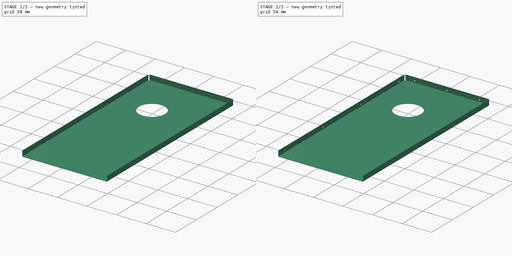
[diagram: build sequence overview — one tinted view per stage of 2, left to right]
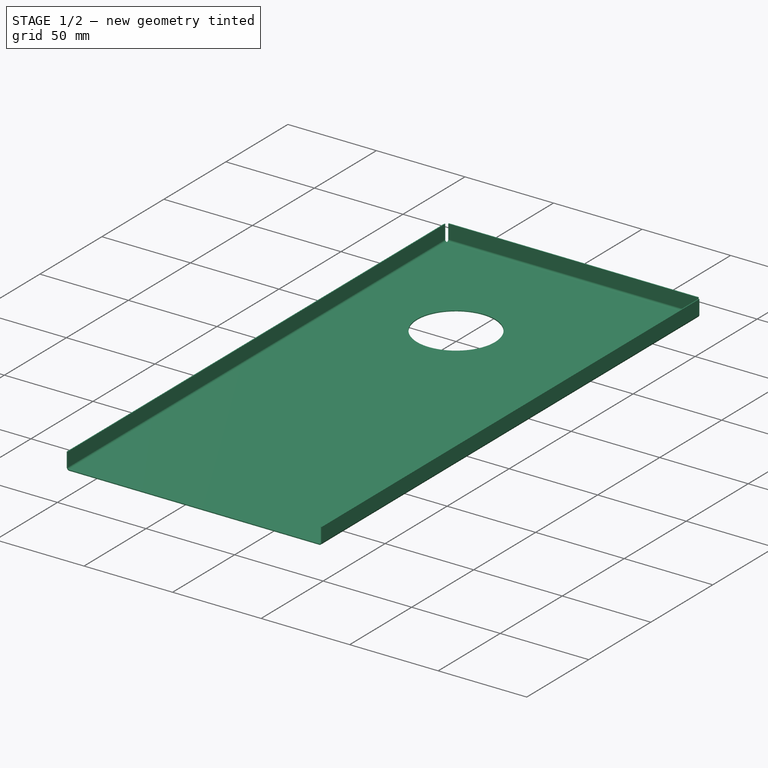
[diagram: stage 1 of 2 — iso view after this stage's code; geometry added in this stage tinted green]
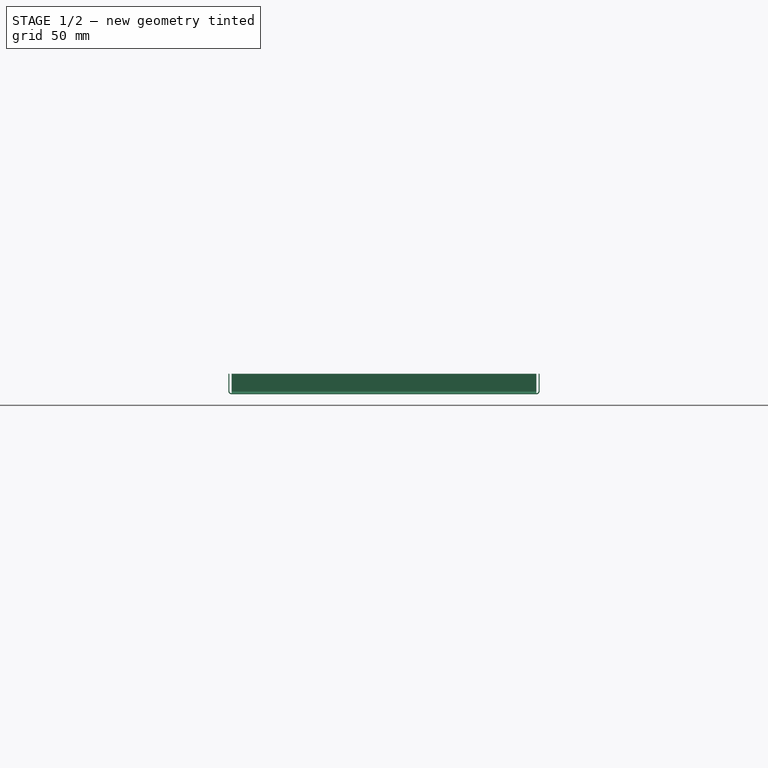
[diagram: stage 1 of 2 — front view after this stage's code; geometry added in this stage tinted green]
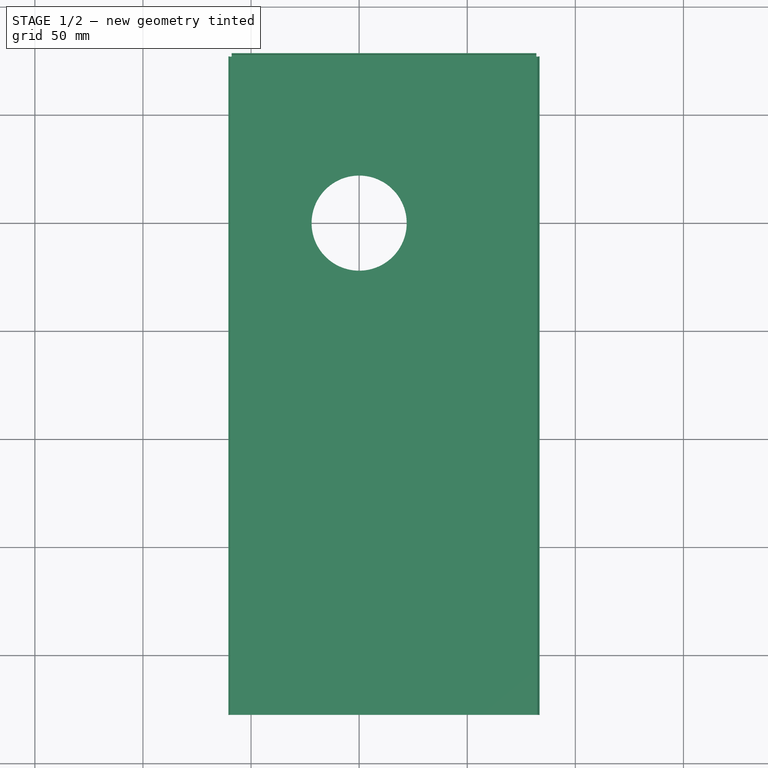
[diagram: stage 1 of 2 — top view after this stage's code; geometry added in this stage tinted green]
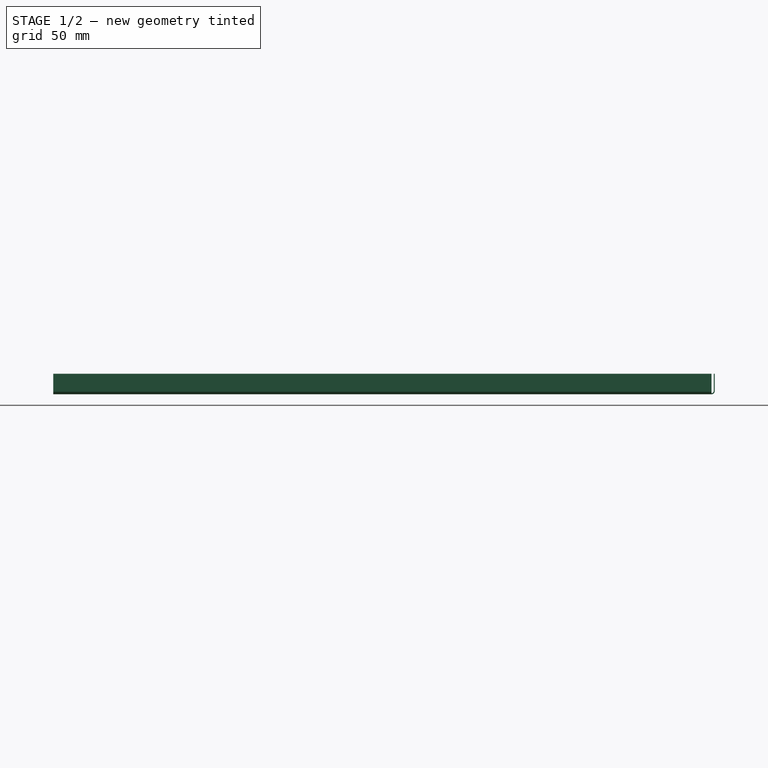
[diagram: stage 1 of 2 — right view after this stage's code; geometry added in this stage tinted green]
FCSTD DOCUMENT  (FreeCAD 0.17R12560 (Git))
Label: C1082-3_cover_side
License: CreativeCommons Attribution-ShareAlike
LicenseURL: http://creativecommons.org/licenses/by-sa/4.0/
objects: Drawing::FeatureViewPython×28, Sketcher::SketchObject×3, PartDesign::Pocket×2, Drawing::FeatureViewPart×2, PartDesign::Pad×1, Part::FeaturePython×1, Part::Feature×1, Drawing::FeaturePage×1
note: 11 computed .brp shape members not serialized (recipe doc carries the construction recipe); baked Part::Feature solids carry a one-line shape summary decoded from their .brp

FEATURE [Sketcher::SketchObject] Sketch
  MapMode = 5
  sketch-geometry (5):
    g0: Circle CenterX=0 CenterY=0 CenterZ=0 NormalX=0 NormalY=0 NormalZ=1 AngleXU=0 Radius=22
    g1: LineSegment StartX=-59 StartY=77 StartZ=0 EndX=82 EndY=77 EndZ=0
    g2: LineSegment StartX=82 StartY=77 StartZ=0 EndX=82 EndY=-227.5 EndZ=0
    g3: LineSegment StartX=82 StartY=-227.5 StartZ=0 EndX=-59 EndY=-227.5 EndZ=0
    g4: LineSegment StartX=-59 StartY=-227.5 StartZ=0 EndX=-59 EndY=77 EndZ=0
  constraints (14):
    c: Coincident(g0,g-1)
    c: Coincident(g1,g2)
    c: Coincident(g2,g3)
    c: Coincident(g3,g4)
    c: Coincident(g4,g1)
    c: Horizontal(g1)
    c: Horizontal(g3)
    c: Vertical(g2)
    c: Vertical(g4)
    c: Radius(g0) = 22
    c: DistanceY(g2,g2) = 304.5  'side_W'
    c: DistanceY(g-1,g1) = 77  'circle_y'
    c: DistanceX(g1,g1) = 141  'side_L'
    c: DistanceX(g1,g-1) = 59  'circle_x'
FEATURE [PartDesign::Pad] Pad
  Length = 0.5
  Length2 = 100
  Profile = -> Sketch
  Type = 0
FEATURE [Part::FeaturePython] Bend  # WARN: FeaturePython — macro-defined, semantics opaque (R4)
  angle = 90
  baseObject = -> Pad [Face4,Face1,Face2]
  gap1 = 0
  gap2 = 0
  invert = false
  length = 8
  radius = 1
  reliefd = 1
  reliefw = 0.5
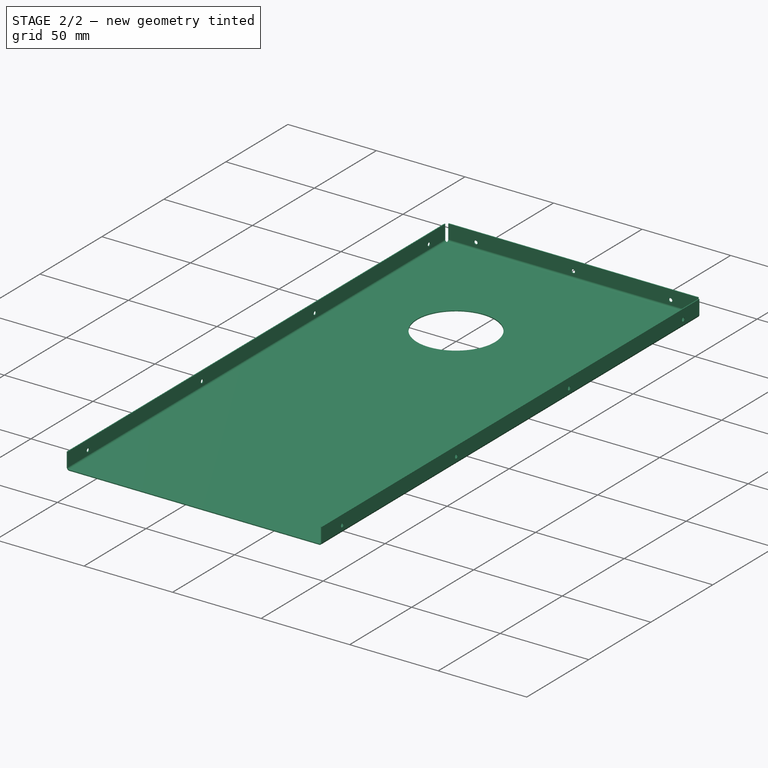
[diagram: stage 2 of 2 — iso view after this stage's code; geometry added in this stage tinted green]
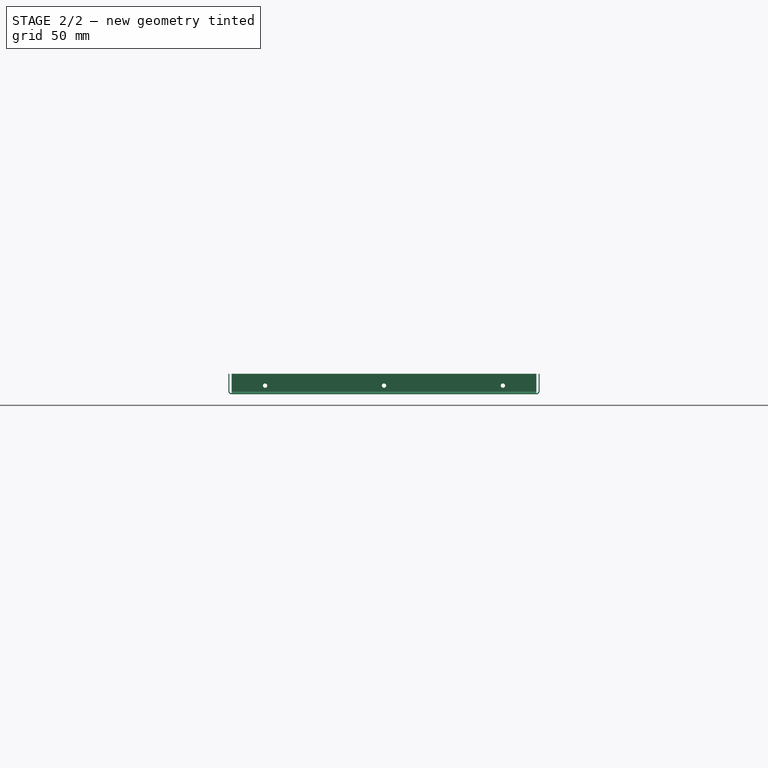
[diagram: stage 2 of 2 — front view after this stage's code; geometry added in this stage tinted green]
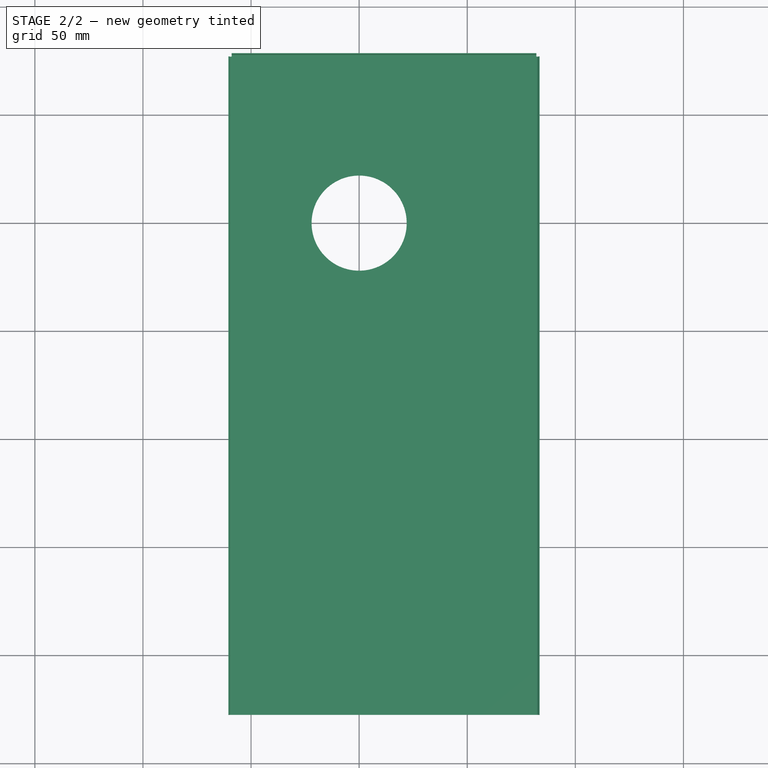
[diagram: stage 2 of 2 — top view after this stage's code; geometry added in this stage tinted green]
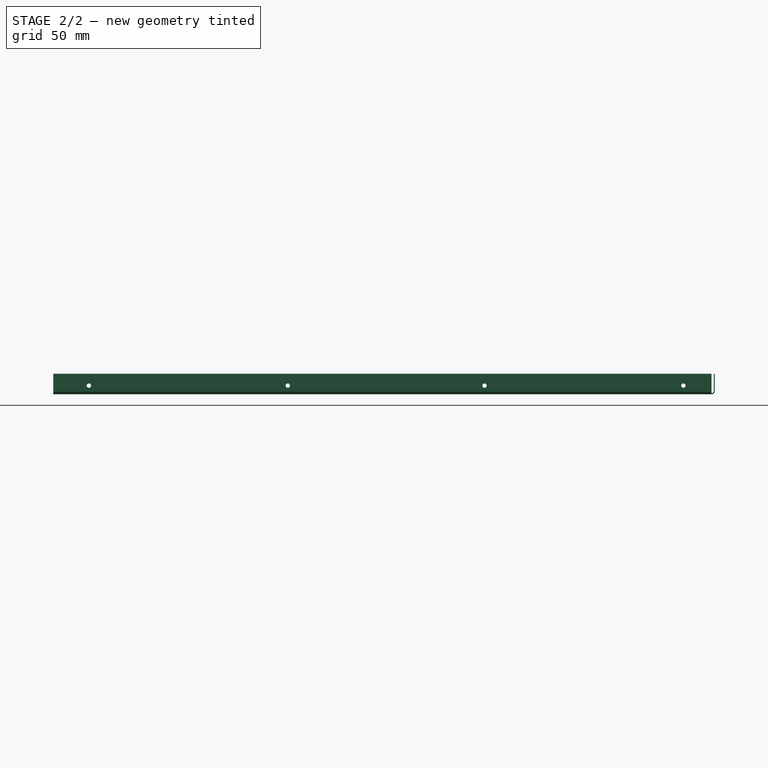
[diagram: stage 2 of 2 — right view after this stage's code; geometry added in this stage tinted green]
FEATURE [Sketcher::SketchObject] Sketch001
  MapMode = 5
  Placement = pos=(0,78.5,0) rot=(0,0.707107,0.707107;3.14159rad)
  Support = -> [Bend]
  expr: Constraints[6] = Sketch001.Constraints.bend_L + 0.5 + 1 - 5.5
  expr: Constraints[14] = Sketch.Constraints.side_L / 2 - Sketch.Constraints.circle_x
  expr: Constraints[5] = Sketch.Constraints.side_L + 1 - 32
  expr: Constraints.bend_L = Bend.length
  sketch-geometry (5):
    g0: Circle CenterX=43.5 CenterY=4 CenterZ=0 NormalX=0 NormalY=0 NormalZ=1 AngleXU=0 Radius=1
    g1: Circle CenterX=-66.5 CenterY=4 CenterZ=0 NormalX=0 NormalY=0 NormalZ=1 AngleXU=0 Radius=1
    g2: LineSegment [constr] StartX=-66.5 StartY=4 StartZ=0 EndX=43.5 EndY=4 EndZ=0
    g3: Circle CenterX=-11.5 CenterY=4 CenterZ=0 NormalX=0 NormalY=0 NormalZ=1 AngleXU=0 Radius=1
    g4: LineSegment [constr] StartX=-11.5 StartY=0 StartZ=0 EndX=-11.5 EndY=8 EndZ=0
  constraints (15):
    c: Coincident(g2,g1)
    c: Coincident(g2,g0)
    c: Horizontal(g2)
    c: Equal(g0,g1)
    c: Radius(g0) = 1
    c: DistanceX(g2,g2) = 110
    c: DistanceY(g-1,g0) = 4
    c: PointOnObject(g3,g2)
    c: Equal(g3,g0)
    c: PointOnObject(g4,g-1)
    c: Vertical(g4)
    c: DistanceY(g4,g4) = 8  'bend_L'
    c: PointOnObject(g3,g4)
    c: Symmetric(g0,g1,g4)
    c: DistanceX(g3,g-1) = 11.5
FEATURE [PartDesign::Pocket] Pocket  label="Pocket-rivets-top"
  Length = 5
  Profile = -> Sketch001
  Type = 1
FEATURE [Sketcher::SketchObject] Sketch002
  MapMode = 5
  Placement = pos=(-60.5,0,0) rot=(0.57735,-0.57735,-0.57735;2.0944rad)
  Support = -> [Pocket]
  expr: Constraints[17] = Sketch002.Constraints.bend_L + 0.5 + 1 - 5.5
  expr: Constraints[13] = round(Sketch002.Constraints.holes_l / 3)
  expr: Constraints.holes_l = Sketch.Constraints.side_W - 30 + 0.5
  expr: Constraints[18] = Sketch.Constraints.circle_y + 1 + 0.5 + 0.5
  expr: Constraints.bend_L = Bend.length
  sketch-geometry (7):
    g0: Circle CenterX=-64 CenterY=4 CenterZ=0 NormalX=0 NormalY=0 NormalZ=1 AngleXU=0 Radius=1
    g1: Circle CenterX=28 CenterY=4 CenterZ=0 NormalX=0 NormalY=0 NormalZ=1 AngleXU=0 Radius=1
    g2: Circle CenterX=119 CenterY=4 CenterZ=0 NormalX=0 NormalY=0 NormalZ=1 AngleXU=0 Radius=1
    g3: Circle CenterX=211 CenterY=4 CenterZ=0 NormalX=0 NormalY=0 NormalZ=1 AngleXU=0 Radius=1
    g4: LineSegment [constr] StartX=-64 StartY=4 StartZ=0 EndX=28 EndY=4 EndZ=0
    g5: LineSegment [constr] StartX=119 StartY=4 StartZ=0 EndX=211 EndY=4 EndZ=0
    g6: LineSegment [constr] StartX=-79 StartY=0 StartZ=0 EndX=-79 EndY=8 EndZ=0
  constraints (20):
    c: Coincident(g4,g0)
    c: Coincident(g4,g1)
    c: Horizontal(g4)
    c: Coincident(g5,g2)
    c: Coincident(g5,g3)
    c: Horizontal(g5)
    c: PointOnObject(g2,g4)
    c: Equal(g4,g5)
    c: DistanceX(g0,g3) = 275  'holes_l'
    c: Equal(g0,g1)
    c: Equal(g1,g2)
    c: Equal(g2,g3)
    c: Radius(g0) = 1
    c: DistanceX(g5,g5) = 92
    c: PointOnObject(g6,g-1)
    c: Vertical(g6)
    c: DistanceY(g6,g6) = 8  'bend_L'
    c: DistanceY(g-1,g3) = 4
    c: DistanceX(g6,g-1) = 79
    c: DistanceX(g6,g0) = 15
FEATURE [PartDesign::Pocket] Pocket001  label="Pocket-rivets-side"
  Length = 5
  Profile = -> Sketch002
  Type = 1
FEATURE [Part::Feature] Unfold
  shape: bbox 160.8 x 314.4 x 0.5 mm, 42 faces (baked)
FEATURE [Drawing::FeatureViewPart] Ortho  label="Ortho_0_0"
  Direction = (0,0,1)
  HiddenWidth = 0.15
  LineWidth = 0.35
  Rotation = -90
  Scale = 0.5
  ShowHiddenLines = false
  ShowSmoothLines = false
  Source = -> Unfold
  Tolerance = 0.05
  ViewResult = <g id="Ortho_0_0"\n   transform="rotate(-90,80,140) translate(80,140) scale(0.5,0.5)"\n  >\n<g   stroke="rgb(0, 0, 0)"\n   stroke-width="0.7"\n   stroke-linecap="butt"\n   stroke-linejoin="miter"\n   fill="none"\n   transform="scale(1,-1)"\n  >\n<path id= "1" d=" M -59 78.8852 L -59 86.8852 " />\n<path id= "2" d=" M -59 78.8852 L 82 78.8852 " />\n<path id= "3" d=" M -59 86.8852 L 82 86.8852 " />\n<path id= "4" d=" M 82 78.8852 L 82 86.8852 " />\n<circle cx ="-43.5" cy ="81.3852" r ="1" /><circle cx ="11.5" cy ="81.3852" r ="1" /><circle cx ="66.5" cy ="81.3852" r ="1" /><path id= "8" d=" M -59 77 L 82 77 " />\n<path id= "9" d=" M -59 77 L -59 78.8852 " />\n<path id= "10" d=" M 82 77 L 82 78.8852 " />\n<path id= "11" d=" M 82 77 L 83.8852 77 " />\n<path id= "12" d=" M 83.8852 77 L 91.8852 77 " />\n<path id= "13" d=" M 83.8852 77 L 83.8852 -227.5 " />\n<path id= "14" d=" M 91.8852 77 L 91.8852 -227.5 " />\n<path id= "15" d=" M 83.8852 -227.5 L 91.8852 -227.5 " />\n<circle cx ="86.3852" cy ="64" r ="1" /><circle cx ="86.3852" cy ="-28" r ="1" /><circle cx ="86.3852" cy ="-211" r ="1" /><circle cx ="86.3852" cy ="-119" r ="1" /><path id= "20" d=" M 82 77 L 82 -227.5 " />\n<path id= "21" d=" M 82 -227.5 L 83.8852 -227.5 " />\n<path id= "22" d=" M -59 77 L -60.8852 77 " />\n<path id= "23" d=" M -60.8852 -227.5 L -68.8852 -227.5 " />\n<path id= "24" d=" M -60.8852 -227.5 L -60.8852 77 " />\n<path id= "25" d=" M -68.8852 -227.5 L -68.8852 77 " />\n<path id= "26" d=" M -60.8852 77 L -68.8852 77 " />\n<circle cx ="-63.3852" cy ="64" r ="1" /><circle cx ="-63.3852" cy ="-28" r ="1" /><circle cx ="-63.3852" cy ="-211" r ="1" /><circle cx ="-63.3852" cy ="-119" r ="1" /><path id= "31" d=" M -59 -227.5 L -59 77 " />\n<path id= "32" d=" M -59 -227.5 L -60.8852 -227.5 " />\n<path id= "33" d=" M 82 -227.5 L -59 -227.5 " />\n<circle cx ="0" cy ="0" r ="22" /></g>\n</g>
  Visible = false
  X = 80
  Y = 140
FEATURE [Drawing::FeatureViewPart] Ortho002  label="Ortho_1_1"
  Direction = (0.57735,-0.57735,0.57735)
  HiddenWidth = 0.15
  LineWidth = 0.35
  Rotation = -60
  Scale = 0.5
  ShowHiddenLines = false
  ShowSmoothLines = false
  Source = -> Pocket001
  Tolerance = 0.05
  ViewResult = <blob: 6591 chars omitted>
  Visible = false
  X = 210
  Y = 55
FEATURE [Drawing::FeatureViewPython] table002  # drawing view (typed FeaturePython)
  Rotation = 0
  ViewResult = <blob: 3127 chars omitted>
  Visible = false
  X = 0
  Y = 0
  border_color = rgb(0,0,0)
  border_width = 0.3
  click1_x = 20
  click1_y = 20
  column_widths = [10,25,25,25]
  contents = Tag | Direction | Angle | Inner Radius | A | UP | 90 | 1mm | B | UP | 90 | 1mm | C | UP | 90 | 1mm
  extra_rows = 0
  padding_x = 1
  padding_y = 1
  row_heights = [5]
  textRenderer_table_color = rgb(0,0,0)
  textRenderer_table_family = inherit
  textRenderer_table_size = 4
FEATURE [Drawing::FeatureViewPython] text001  # drawing view (typed FeaturePython)
  Rotation = 0
  ViewResult = <g> <text x="20.000000" y="15.000000" font-family="inherit" font-size="5" fill="rgb(0,0,0)" text-anchor="inherit" transform="rotate(0.000000 20.000000,15.000000)" >Scale 0.5</text> </g>
  Visible = false
  X = 0
  Y = 0
  click1_x = 20
  click1_y = 15
  rotation = 0
  text = Scale 0.5
  textRenderer_addText_color = rgb(0,0,0)
  textRenderer_addText_family = inherit
  textRenderer_addText_size = 5
FEATURE [Drawing::FeatureViewPython] text002  # drawing view (typed FeaturePython)
  Rotation = 0
  ViewResult = <g> <text x="20.000000" y="10.000000" font-family="inherit" font-size="5" fill="rgb(0,0,0)" text-anchor="inherit" transform="rotate(0.000000 20.000000,10.000000)" >SatNOGS Rotator v3.1, cover_side_mirror</text> </g>
  Visible = false
  X = 0
  Y = 0
  click1_x = 20
  click1_y = 10
  rotation = 0
  text = SatNOGS Rotator v3.1, cover_side_mirror
  textRenderer_addText_color = rgb(0,0,0)
  textRenderer_addText_family = inherit
  textRenderer_addText_size = 5
FEATURE [Drawing::FeatureViewPython] centerLines001  # drawing view (typed FeaturePython)
  Rotation = 0
  ViewResult = <g transform="scale(0.500000,0.500000)" stroke="rgb(0,0,255)"  stroke-width="0.640000" > <path d="M 83.000000,268.500000 L 77.000000,268.500000 M 73.000000,268.500000 L 61.000000,268.500000 M 57.000000,268.500000 L 51.000000,268.500000 M 47.000000,268.500000 L 40.000000,268.500000 "/>\n<path d="M 83.000000,268.500000 L 89.000000,268.500000 M 93.000000,268.500000 L 105.000000,268.500000 M 109.000000,268.500000 L 115.000000,268.500000 M 119.000000,268.500000 L 131.000000,268.500000 M 135.000000,268.500000 L 141.000000,268.500000 M 145.000000,268.500000 L 157.000000,268.500000 M 161.000000,268.500000 L 167.000000,268.500000 M 171.000000,268.500000 L 183.000000,268.500000 M 187.000000,268.500000 L 193.000000,268.500000 M 197.000000,268.500000 L 209.000000,268.500000 M 213.000000,268.500000 L 219.000000,268.500000 M 223.000000,268.500000 L 235.000000,268.500000 M 239.000000,268.500000 L 245.000000,268.500000 M 249.000000,268.500000 L 261.000000,268.500000 M 265.000000,268.500000 L 271.000000,268.500000 M 275.000000,268.500000 L 287.000000,268.500000 M 291.000000,268.500000 L 297.000000,268.500000 M 301.000000,268.500000 L 313.000000,268.500000 M 317.000000,268.500000 L 323.000000,268.500000 M 327.000000,268.500000 L 339.000000,268.500000 M 343.000000,268.500000 L 349.000000,268.500000 M 353.000000,268.500000 L 365.000000,268.500000 M 369.000000,268.500000 L 375.000000,268.500000 M 379.000000,268.500000 L 391.000000,268.500000 M 395.000000,268.500000 L 401.000000,268.500000 M 405.000000,268.500000 L 417.000000,268.500000 "/> </g> 
  Visible = false
  X = 0
  Y = 0
  centerLine_color = rgb(0,0,255)
  centerLine_len_dash = 6
  centerLine_len_dot = 3
  centerLine_len_gap = 2
  centerLine_width = 0.32
  click1_x = 20
  click1_y = 130
  click2_x = 210
  click2_y = 130
FEATURE [Drawing::FeatureViewPython] dim001  # drawing view (typed FeaturePython)
  Rotation = 0
  ViewResult = <g> \n  <line x1="195.750000" y1="94.057400" x2="221.000000" y2="94.057400" style="stroke:rgb(0,0,255);stroke-width:0.20" />\n<line x1="195.750000" y1="174.442600" x2="221.000000" y2="174.442600" style="stroke:rgb(0,0,255);stroke-width:0.20" />\n<line x1="220.000000" y1="94.057400" x2="220.000000" y2="174.442600" style="stroke:rgb(0,0,255);stroke-width:0.20" /> \n  <polygon points="220.000000,174.442600 221.000000,171.442600 220.000000,170.442600 219.000000,171.442600" style="fill:rgb(0,0,255);stroke:rgb(0,0,255);stroke-width:0" /><polygon points="220.000000,94.057400 219.000000,97.057400 220.000000,98.057400 221.000000,97.057400" style="fill:rgb(0,0,255);stroke:rgb(0,0,255);stroke-width:0" /> \n  <text x="218.000000" y="134.250000" font-family="inherit" font-size="3.6" fill="rgb(0,0,255)" text-anchor="middle" transform="rotate(-90.000000 218.000000,134.250000)" >160.8</text> </g>
  Visible = false
  X = 0
  Y = 0
  arrowL1 = 3
  arrowL2 = 1
  arrowW = 2
  arrow_scheme = 0
  autoPlaceOffset = 2
  autoPlaceText = true
  click1_x = 220
  click1_y = 140
  click2_x = 220
  click2_y = 140
  comma_decimal_place = false
  dimension_line_overshoot = 1
  gap_datum_points = 2
  halfDimension_linear = false
  lineColor = rgb(0,0,255)
  strokeWidth = 0.2
  textFormat_linear = %(value)3.1f
  textRenderer_color = rgb(0,0,255)
  textRenderer_family = inherit
  textRenderer_size = 3.6
  unit_custom_scale = 1
  unit_scheme = 0
FEATURE [Drawing::FeatureViewPython] dim002  # drawing view (typed FeaturePython)
  Rotation = 0
  ViewResult = <g> \n  <line x1="193.750000" y1="92.057400" x2="193.750000" y2="79.000000" style="stroke:rgb(0,0,255);stroke-width:0.20" />\n<line x1="41.500000" y1="92.057400" x2="41.500000" y2="79.000000" style="stroke:rgb(0,0,255);stroke-width:0.20" />\n<line x1="193.750000" y1="80.000000" x2="41.500000" y2="80.000000" style="stroke:rgb(0,0,255);stroke-width:0.20" /> \n  <polygon points="41.500000,80.000000 44.500000,81.000000 45.500000,80.000000 44.500000,79.000000" style="fill:rgb(0,0,255);stroke:rgb(0,0,255);stroke-width:0" /><polygon points="193.750000,80.000000 190.750000,79.000000 189.750000,80.000000 190.750000,81.000000" style="fill:rgb(0,0,255);stroke:rgb(0,0,255);stroke-width:0" /> \n  <text x="117.625000" y="78.000000" font-family="inherit" font-size="3.6" fill="rgb(0,0,255)" text-anchor="middle" transform="rotate(-0.000000 117.625000,78.000000)" >304.5</text> </g>
  Visible = false
  X = 0
  Y = 0
  arrowL1 = 3
  arrowL2 = 1
  arrowW = 2
  arrow_scheme = 0
  autoPlaceOffset = 2
  autoPlaceText = true
  click1_x = 40
  click1_y = 80
  click2_x = 40
  click2_y = 80
  comma_decimal_place = false
  dimension_line_overshoot = 1
  gap_datum_points = 2
  halfDimension_linear = false
  lineColor = rgb(0,0,255)
  strokeWidth = 0.2
  textFormat_linear = %(value)3.1f
  textRenderer_color = rgb(0,0,255)
  textRenderer_family = inherit
  textRenderer_size = 3.6
  unit_custom_scale = 1
  unit_scheme = 0
FEATURE [Drawing::FeatureViewPython] dim003  # drawing view (typed FeaturePython)
  Rotation = 0
  ViewResult = <g> \n  <line x1="41.500000" y1="92.057400" x2="41.500000" y2="84.000000" style="stroke:rgb(0,0,255);stroke-width:0.20" />\n<line x1="80.000000" y1="138.000000" x2="80.000000" y2="84.000000" style="stroke:rgb(0,0,255);stroke-width:0.20" />\n<line x1="41.500000" y1="85.000000" x2="80.000000" y2="85.000000" style="stroke:rgb(0,0,255);stroke-width:0.20" /> \n  <polygon points="80.000000,85.000000 77.000000,84.000000 76.000000,85.000000 77.000000,86.000000" style="fill:rgb(0,0,255);stroke:rgb(0,0,255);stroke-width:0" /><polygon points="41.500000,85.000000 44.500000,86.000000 45.500000,85.000000 44.500000,84.000000" style="fill:rgb(0,0,255);stroke:rgb(0,0,255);stroke-width:0" /> \n  <text x="60.750000" y="83.000000" font-family="inherit" font-size="3.6" fill="rgb(0,0,255)" text-anchor="middle" transform="rotate(0.000000 60.750000,83.000000)" >77</text> </g>
  Visible = false
  X = 0
  Y = 0
  arrowL1 = 3
  arrowL2 = 1
  arrowW = 2
  arrow_scheme = 0
  autoPlaceOffset = 2
  autoPlaceText = true
  click1_x = 65
  click1_y = 85
  click2_x = 65
  click2_y = 85
  comma_decimal_place = false
  dimension_line_overshoot = 1
  gap_datum_points = 2
  halfDimension_linear = false
  lineColor = rgb(0,0,255)
  strokeWidth = 0.2
  textFormat_linear = %(value)3.1f
  textRenderer_color = rgb(0,0,255)
  textRenderer_family = inherit
  textRenderer_size = 3.6
  unit_custom_scale = 1
  unit_scheme = 0
FEATURE [Drawing::FeatureViewPython] dim004  # drawing view (typed FeaturePython)
  Rotation = 0
  ViewResult = <g> \n  <line x1="41.500000" y1="92.057400" x2="41.500000" y2="90.000000" style="stroke:rgb(0,0,255);stroke-width:0.20" />\n<line x1="48.000000" y1="94.807400" x2="48.000000" y2="90.000000" style="stroke:rgb(0,0,255);stroke-width:0.20" />\n<line x1="41.500000" y1="91.000000" x2="48.000000" y2="91.000000" style="stroke:rgb(0,0,255);stroke-width:0.20" /> \n  <polygon points="48.000000,91.000000 51.000000,92.000000 52.000000,91.000000 51.000000,90.000000" style="fill:rgb(0,0,255);stroke:rgb(0,0,255);stroke-width:0" /><polygon points="41.500000,91.000000 38.500000,90.000000 37.500000,91.000000 38.500000,92.000000" style="fill:rgb(0,0,255);stroke:rgb(0,0,255);stroke-width:0" /> \n  <text x="44.750000" y="89.000000" font-family="inherit" font-size="3.6" fill="rgb(0,0,255)" text-anchor="middle" transform="rotate(0.000000 44.750000,89.000000)" >13</text> </g>
  Visible = false
  X = 0
  Y = 0
  arrowL1 = 3
  arrowL2 = 1
  arrowW = 2
  arrow_scheme = 0
  autoPlaceOffset = 2
  autoPlaceText = true
  click1_x = 44
  click1_y = 91
  click2_x = 44
  click2_y = 91
  comma_decimal_place = false
  dimension_line_overshoot = 1
  gap_datum_points = 2
  halfDimension_linear = false
  lineColor = rgb(0,0,255)
  strokeWidth = 0.2
  textFormat_linear = %(value)3.1f
  textRenderer_color = rgb(0,0,255)
  textRenderer_family = inherit
  textRenderer_size = 3.6
  unit_custom_scale = 1
  unit_scheme = 0
FEATURE [Drawing::FeatureViewPython] dim005  # drawing view (typed FeaturePython)
  Rotation = 0
  ViewResult = <g> \n  <line x1="34.557400" y1="169.500000" x2="6.000000" y2="169.500000" style="stroke:rgb(0,0,255);stroke-width:0.20" />\n<line x1="34.557400" y1="99.000000" x2="6.000000" y2="99.000000" style="stroke:rgb(0,0,255);stroke-width:0.20" />\n<line x1="7.000000" y1="169.500000" x2="7.000000" y2="99.000000" style="stroke:rgb(0,0,255);stroke-width:0.20" /> \n  <polygon points="7.000000,99.000000 6.000000,102.000000 7.000000,103.000000 8.000000,102.000000" style="fill:rgb(0,0,255);stroke:rgb(0,0,255);stroke-width:0" /><polygon points="7.000000,169.500000 8.000000,166.500000 7.000000,165.500000 6.000000,166.500000" style="fill:rgb(0,0,255);stroke:rgb(0,0,255);stroke-width:0" /> \n  <text x="5.000000" y="134.250000" font-family="inherit" font-size="3.6" fill="rgb(0,0,255)" text-anchor="middle" transform="rotate(-90.000000 5.000000,134.250000)" >141</text> </g>
  Visible = false
  X = 0
  Y = 0
  arrowL1 = 3
  arrowL2 = 1
  arrowW = 2
  arrow_scheme = 0
  autoPlaceOffset = 2
  autoPlaceText = true
  click1_x = 7
  click1_y = 127.5
  click2_x = 7
  click2_y = 127.5
  comma_decimal_place = false
  dimension_line_overshoot = 1
  gap_datum_points = 2
  halfDimension_linear = false
  lineColor = rgb(0,0,255)
  strokeWidth = 0.2
  textFormat_linear = %(value)3.1f
  textRenderer_color = rgb(0,0,255)
  textRenderer_family = inherit
  textRenderer_size = 3.6
  unit_custom_scale = 1
  unit_scheme = 0
FEATURE [Drawing::FeatureViewPython] dim006  # drawing view (typed FeaturePython)
  Rotation = 0
  ViewResult = <g> \n  <line x1="18.000000" y1="134.250000" x2="15.000000" y2="134.250000" style="stroke:rgb(0,0,255);stroke-width:0.20" />\n<line x1="37.307400" y1="161.750000" x2="15.000000" y2="161.750000" style="stroke:rgb(0,0,255);stroke-width:0.20" />\n<line x1="16.000000" y1="134.250000" x2="16.000000" y2="161.750000" style="stroke:rgb(0,0,255);stroke-width:0.20" /> \n  <polygon points="16.000000,161.750000 17.000000,158.750000 16.000000,157.750000 15.000000,158.750000" style="fill:rgb(0,0,255);stroke:rgb(0,0,255);stroke-width:0" /><polygon points="16.000000,134.250000 15.000000,137.250000 16.000000,138.250000 17.000000,137.250000" style="fill:rgb(0,0,255);stroke:rgb(0,0,255);stroke-width:0" /> \n  <text x="14.000000" y="148.000000" font-family="inherit" font-size="3.6" fill="rgb(0,0,255)" text-anchor="middle" transform="rotate(-90.000000 14.000000,148.000000)" >55</text> </g>
  Visible = false
  X = 0
  Y = 0
  arrowL1 = 3
  arrowL2 = 1
  arrowW = 2
  arrow_scheme = 0
  autoPlaceOffset = 2
  autoPlaceText = true
  click1_x = 16
  click1_y = 148
  click2_x = 16
  click2_y = 148
  comma_decimal_place = false
  dimension_line_overshoot = 1
  gap_datum_points = 2
  halfDimension_linear = false
  lineColor = rgb(0,0,255)
  strokeWidth = 0.2
  textFormat_linear = %(value)3.1f
  textRenderer_color = rgb(0,0,255)
  textRenderer_family = inherit
  textRenderer_size = 3.6
  unit_custom_scale = 1
  unit_scheme = 0
FEATURE [Drawing::FeatureViewPython] dim007  # drawing view (typed FeaturePython)
  Rotation = 0
  ViewResult = <g> \n  <line x1="34.557400" y1="99.000000" x2="15.000000" y2="99.000000" style="stroke:rgb(0,0,255);stroke-width:0.20" />\n<line x1="18.000000" y1="134.250000" x2="15.000000" y2="134.250000" style="stroke:rgb(0,0,255);stroke-width:0.20" />\n<line x1="16.000000" y1="99.000000" x2="16.000000" y2="134.250000" style="stroke:rgb(0,0,255);stroke-width:0.20" /> \n  <polygon points="16.000000,134.250000 17.000000,131.250000 16.000000,130.250000 15.000000,131.250000" style="fill:rgb(0,0,255);stroke:rgb(0,0,255);stroke-width:0" /><polygon points="16.000000,99.000000 15.000000,102.000000 16.000000,103.000000 17.000000,102.000000" style="fill:rgb(0,0,255);stroke:rgb(0,0,255);stroke-width:0" /> \n  <text x="14.000000" y="116.625000" font-family="inherit" font-size="3.6" fill="rgb(0,0,255)" text-anchor="middle" transform="rotate(-90.000000 14.000000,116.625000)" >70.5</text> </g>
  Visible = false
  X = 0
  Y = 0
  arrowL1 = 3
  arrowL2 = 1
  arrowW = 2
  arrow_scheme = 0
  autoPlaceOffset = 2
  autoPlaceText = true
  click1_x = 16
  click1_y = 124
  click2_x = 16
  click2_y = 124
  comma_decimal_place = false
  dimension_line_overshoot = 1
  gap_datum_points = 2
  halfDimension_linear = false
  lineColor = rgb(0,0,255)
  strokeWidth = 0.2
  textFormat_linear = %(value)3.1f
  textRenderer_color = rgb(0,0,255)
  textRenderer_family = inherit
  textRenderer_size = 3.6
  unit_custom_scale = 1
  unit_scheme = 0
FEATURE [Drawing::FeatureViewPython] dim009  # drawing view (typed FeaturePython)
  Rotation = 0
  ViewResult = <g> \n  <line x1="78.000000" y1="140.000000" x2="24.000000" y2="140.000000" style="stroke:rgb(0,0,255);stroke-width:0.20" />\n<line x1="34.557400" y1="99.000000" x2="24.000000" y2="99.000000" style="stroke:rgb(0,0,255);stroke-width:0.20" />\n<line x1="25.000000" y1="140.000000" x2="25.000000" y2="99.000000" style="stroke:rgb(0,0,255);stroke-width:0.20" /> \n  <polygon points="25.000000,99.000000 24.000000,102.000000 25.000000,103.000000 26.000000,102.000000" style="fill:rgb(0,0,255);stroke:rgb(0,0,255);stroke-width:0" /><polygon points="25.000000,140.000000 26.000000,137.000000 25.000000,136.000000 24.000000,137.000000" style="fill:rgb(0,0,255);stroke:rgb(0,0,255);stroke-width:0" /> \n  <text x="23.000000" y="119.500000" font-family="inherit" font-size="3.6" fill="rgb(0,0,255)" text-anchor="middle" transform="rotate(-90.000000 23.000000,119.500000)" >82</text> </g>
  Visible = false
  X = 0
  Y = 0
  arrowL1 = 3
  arrowL2 = 1
  arrowW = 2
  arrow_scheme = 0
  autoPlaceOffset = 2
  autoPlaceText = true
  click1_x = 25
  click1_y = 118
  click2_x = 25
  click2_y = 118
  comma_decimal_place = false
  dimension_line_overshoot = 1
  gap_datum_points = 2
  halfDimension_linear = false
  lineColor = rgb(0,0,255)
  strokeWidth = 0.2
  textFormat_linear = %(value)3.1f
  textRenderer_color = rgb(0,0,255)
  textRenderer_family = inherit
  textRenderer_size = 3.6
  unit_custom_scale = 1
  unit_scheme = 0
FEATURE [Drawing::FeatureViewPython] dim008  # drawing view (typed FeaturePython)
  Rotation = 0
  ViewResult = <g> \n  <line x1="193.750000" y1="176.442600" x2="193.750000" y2="202.500000" style="stroke:rgb(0,0,255);stroke-width:0.20" />\n<line x1="36.557400" y1="171.500000" x2="36.557400" y2="202.500000" style="stroke:rgb(0,0,255);stroke-width:0.20" />\n<line x1="193.750000" y1="201.500000" x2="36.557400" y2="201.500000" style="stroke:rgb(0,0,255);stroke-width:0.20" /> \n  <polygon points="36.557400,201.500000 39.557400,202.500000 40.557400,201.500000 39.557400,200.500000" style="fill:rgb(0,0,255);stroke:rgb(0,0,255);stroke-width:0" /><polygon points="193.750000,201.500000 190.750000,200.500000 189.750000,201.500000 190.750000,202.500000" style="fill:rgb(0,0,255);stroke:rgb(0,0,255);stroke-width:0" /> \n  <text x="115.153700" y="199.500000" font-family="inherit" font-size="3.6" fill="rgb(0,0,255)" text-anchor="middle" transform="rotate(0.000000 115.153700,199.500000)" >314.4</text> </g>
  Visible = false
  X = 0
  Y = 0
  arrowL1 = 3
  arrowL2 = 1
  arrowW = 2
  arrow_scheme = 0
  autoPlaceOffset = 2
  autoPlaceText = true
  click1_x = 92
  click1_y = 201.5
  click2_x = 92
  click2_y = 201.5
  comma_decimal_place = false
  dimension_line_overshoot = 1
  gap_datum_points = 2
  halfDimension_linear = false
  lineColor = rgb(0,0,255)
  strokeWidth = 0.2
  textFormat_linear = %(value)3.1f
  textRenderer_color = rgb(0,0,255)
  textRenderer_family = inherit
  textRenderer_size = 3.6
  unit_custom_scale = 1
  unit_scheme = 0
FEATURE [Drawing::FeatureViewPython] dim010  # drawing view (typed FeaturePython)
  Rotation = 0
  ViewResult = <g> \n  <line x1="185.500000" y1="173.692600" x2="185.500000" y2="191.000000" style="stroke:rgb(0,0,255);stroke-width:0.20" />\n<line x1="139.500000" y1="173.692600" x2="139.500000" y2="191.000000" style="stroke:rgb(0,0,255);stroke-width:0.20" />\n<line x1="185.500000" y1="190.000000" x2="139.500000" y2="190.000000" style="stroke:rgb(0,0,255);stroke-width:0.20" /> \n  <polygon points="139.500000,190.000000 142.500000,191.000000 143.500000,190.000000 142.500000,189.000000" style="fill:rgb(0,0,255);stroke:rgb(0,0,255);stroke-width:0" /><polygon points="185.500000,190.000000 182.500000,189.000000 181.500000,190.000000 182.500000,191.000000" style="fill:rgb(0,0,255);stroke:rgb(0,0,255);stroke-width:0" /> \n  <text x="162.500000" y="188.000000" font-family="inherit" font-size="3.6" fill="rgb(0,0,255)" text-anchor="middle" transform="rotate(0.000000 162.500000,188.000000)" >92</text> </g>
  Visible = false
  X = 0
  Y = 0
  arrowL1 = 3
  arrowL2 = 1
  arrowW = 2
  arrow_scheme = 0
  autoPlaceOffset = 2
  autoPlaceText = true
  click1_x = 160.5
  click1_y = 190
  click2_x = 160.5
  click2_y = 190
  comma_decimal_place = false
  dimension_line_overshoot = 1
  gap_datum_points = 2
  halfDimension_linear = false
  lineColor = rgb(0,0,255)
  strokeWidth = 0.2
  textFormat_linear = %(value)3.1f
  textRenderer_color = rgb(0,0,255)
  textRenderer_family = inherit
  textRenderer_size = 3.6
  unit_custom_scale = 1
  unit_scheme = 0
FEATURE [Drawing::FeatureViewPython] dim011  # drawing view (typed FeaturePython)
  Rotation = 0
  ViewResult = <g> \n  <line x1="94.000000" y1="173.692600" x2="94.000000" y2="191.000000" style="stroke:rgb(0,0,255);stroke-width:0.20" />\n<line x1="139.500000" y1="173.692600" x2="139.500000" y2="191.000000" style="stroke:rgb(0,0,255);stroke-width:0.20" />\n<line x1="94.000000" y1="190.000000" x2="139.500000" y2="190.000000" style="stroke:rgb(0,0,255);stroke-width:0.20" /> \n  <polygon points="139.500000,190.000000 136.500000,189.000000 135.500000,190.000000 136.500000,191.000000" style="fill:rgb(0,0,255);stroke:rgb(0,0,255);stroke-width:0" /><polygon points="94.000000,190.000000 97.000000,191.000000 98.000000,190.000000 97.000000,189.000000" style="fill:rgb(0,0,255);stroke:rgb(0,0,255);stroke-width:0" /> \n  <text x="116.750000" y="188.000000" font-family="inherit" font-size="3.6" fill="rgb(0,0,255)" text-anchor="middle" transform="rotate(0.000000 116.750000,188.000000)" >91</text> </g>
  Visible = false
  X = 0
  Y = 0
  arrowL1 = 3
  arrowL2 = 1
  arrowW = 2
  arrow_scheme = 0
  autoPlaceOffset = 2
  autoPlaceText = true
  click1_x = 137.5
  click1_y = 190
  click2_x = 137.5
  click2_y = 190
  comma_decimal_place = false
  dimension_line_overshoot = 1
  gap_datum_points = 2
  halfDimension_linear = false
  lineColor = rgb(0,0,255)
  strokeWidth = 0.2
  textFormat_linear = %(value)3.1f
  textRenderer_color = rgb(0,0,255)
  textRenderer_family = inherit
  textRenderer_size = 3.6
  unit_custom_scale = 1
  unit_scheme = 0
FEATURE [Drawing::FeatureViewPython] dim012  # drawing view (typed FeaturePython)
  Rotation = 0
  ViewResult = <g> \n  <line x1="48.000000" y1="173.692600" x2="48.000000" y2="191.000000" style="stroke:rgb(0,0,255);stroke-width:0.20" />\n<line x1="94.000000" y1="173.692600" x2="94.000000" y2="191.000000" style="stroke:rgb(0,0,255);stroke-width:0.20" />\n<line x1="48.000000" y1="190.000000" x2="94.000000" y2="190.000000" style="stroke:rgb(0,0,255);stroke-width:0.20" /> \n  <polygon points="94.000000,190.000000 91.000000,189.000000 90.000000,190.000000 91.000000,191.000000" style="fill:rgb(0,0,255);stroke:rgb(0,0,255);stroke-width:0" /><polygon points="48.000000,190.000000 51.000000,191.000000 52.000000,190.000000 51.000000,189.000000" style="fill:rgb(0,0,255);stroke:rgb(0,0,255);stroke-width:0" /> \n  <text x="71.000000" y="188.000000" font-family="inherit" font-size="3.6" fill="rgb(0,0,255)" text-anchor="middle" transform="rotate(0.000000 71.000000,188.000000)" >92</text> </g>
  Visible = false
  X = 0
  Y = 0
  arrowL1 = 3
  arrowL2 = 1
  arrowW = 2
  arrow_scheme = 0
  autoPlaceOffset = 2
  autoPlaceText = true
  click1_x = 93.5
  click1_y = 190
  click2_x = 93.5
  click2_y = 190
  comma_decimal_place = false
  dimension_line_overshoot = 1
  gap_datum_points = 2
  halfDimension_linear = false
  lineColor = rgb(0,0,255)
  strokeWidth = 0.2
  textFormat_linear = %(value)3.1f
  textRenderer_color = rgb(0,0,255)
  textRenderer_family = inherit
  textRenderer_size = 3.6
  unit_custom_scale = 1
  unit_scheme = 0
FEATURE [Drawing::FeatureViewPython] dim014  # drawing view (typed FeaturePython)
  Rotation = 0
  ViewResult = <g> \n  <line x1="187.500000" y1="171.692600" x2="210.500000" y2="171.692600" style="stroke:rgb(0,0,255);stroke-width:0.20" />\n<line x1="195.750000" y1="174.442600" x2="210.500000" y2="174.442600" style="stroke:rgb(0,0,255);stroke-width:0.20" />\n<line x1="209.500000" y1="171.692600" x2="209.500000" y2="174.442600" style="stroke:rgb(0,0,255);stroke-width:0.20" /> \n  <polygon points="209.500000,174.442600 208.500000,177.442600 209.500000,178.442600 210.500000,177.442600" style="fill:rgb(0,0,255);stroke:rgb(0,0,255);stroke-width:0" /><polygon points="209.500000,171.692600 210.500000,168.692600 209.500000,167.692600 208.500000,168.692600" style="fill:rgb(0,0,255);stroke:rgb(0,0,255);stroke-width:0" /> \n  <text x="207.500000" y="173.067600" font-family="inherit" font-size="3.6" fill="rgb(0,0,255)" text-anchor="middle" transform="rotate(-90.000000 207.500000,173.067600)" >5.5</text> </g>
  Visible = false
  X = 0
  Y = 0
  arrowL1 = 3
  arrowL2 = 1
  arrowW = 2
  arrow_scheme = 0
  autoPlaceOffset = 2
  autoPlaceText = true
  click1_x = 209.5
  click1_y = 173.5
  click2_x = 209.5
  click2_y = 173.5
  comma_decimal_place = false
  dimension_line_overshoot = 1
  gap_datum_points = 2
  halfDimension_linear = false
  lineColor = rgb(0,0,255)
  strokeWidth = 0.2
  textFormat_linear = %(value)3.1f
  textRenderer_color = rgb(0,0,255)
  textRenderer_family = inherit
  textRenderer_size = 3.6
  unit_custom_scale = 1
  unit_scheme = 0
FEATURE [Drawing::FeatureViewPython] dim013  # drawing view (typed FeaturePython)
  Rotation = 0
  ViewResult = <g> \n  <line x1="36.557400" y1="171.500000" x2="36.557400" y2="191.000000" style="stroke:rgb(0,0,255);stroke-width:0.20" />\n<line x1="39.307400" y1="164.250000" x2="39.307400" y2="191.000000" style="stroke:rgb(0,0,255);stroke-width:0.20" />\n<line x1="36.557400" y1="190.000000" x2="39.307400" y2="190.000000" style="stroke:rgb(0,0,255);stroke-width:0.20" /> \n  <polygon points="39.307400,190.000000 42.307400,191.000000 43.307400,190.000000 42.307400,189.000000" style="fill:rgb(0,0,255);stroke:rgb(0,0,255);stroke-width:0" /><polygon points="36.557400,190.000000 33.557400,189.000000 32.557400,190.000000 33.557400,191.000000" style="fill:rgb(0,0,255);stroke:rgb(0,0,255);stroke-width:0" /> \n  <text x="37.932400" y="188.000000" font-family="inherit" font-size="3.6" fill="rgb(0,0,255)" text-anchor="middle" transform="rotate(0.000000 37.932400,188.000000)" >5.5</text> </g>
  Visible = false
  X = 0
  Y = 0
  arrowL1 = 3
  arrowL2 = 1
  arrowW = 2
  arrow_scheme = 0
  autoPlaceOffset = 2
  autoPlaceText = true
  click1_x = 38.5
  click1_y = 190
  click2_x = 38.5
  click2_y = 190
  comma_decimal_place = false
  dimension_line_overshoot = 1
  gap_datum_points = 2
  halfDimension_linear = false
  lineColor = rgb(0,0,255)
  strokeWidth = 0.2
  textFormat_linear = %(value)3.1f
  textRenderer_color = rgb(0,0,255)
  textRenderer_family = inherit
  textRenderer_size = 3.6
  unit_custom_scale = 1
  unit_scheme = 0
FEATURE [Drawing::FeatureViewPython] dia001  # drawing view (typed FeaturePython)
  Rotation = 0
  ViewResult = <g>  <circle cx ="80.000000" cy ="140.000000" r="0.250000" stroke="none" fill="rgb(0,0,255)" /> \n<line x1="94.000000" y1="122.500000" x2="73.128354" y2="148.589557" style="stroke:rgb(0,0,255);stroke-width:0.20" />\n<polygon points="86.871646,131.410443 84.216692,133.128354 84.372865,134.533918 85.778429,134.377745" style="fill:rgb(0,0,255);stroke:rgb(0,0,255);stroke-width:0" />\n<polygon points="73.128354,148.589557 75.783308,146.871646 75.627135,145.466082 74.221571,145.622255" style="fill:rgb(0,0,255);stroke:rgb(0,0,255);stroke-width:0" />\n<line x1="94.000000" y1="122.500000" x2="105.500000" y2="122.500000" style="stroke:rgb(0,0,255);stroke-width:0.20" />\n<text x="99.750000" y="120.500000" font-family="inherit" font-size="3.6" fill="rgb(0,0,255)" text-anchor="middle" transform="rotate(0.000000 99.750000,120.500000)" >Ø44</text> </g>
  Visible = false
  X = 0
  Y = 0
  arrowL1 = 3
  arrowL2 = 1
  arrowW = 2
  arrow_scheme = 0
  autoPlaceOffset = 2
  autoPlaceText = true
  centerPointDia = 0.5
  click1_x = 94
  click1_y = 122.5
  click2_x = 105.5
  click2_y = 122.5
  click3_x = 105.5
  click3_y = 122.5
  comma_decimal_place = false
  lineColor = rgb(0,0,255)
  strokeWidth = 0.2
  textFormat_circular = Ø%(value)3.3f
  textRenderer_color = rgb(0,0,255)
  textRenderer_family = inherit
  textRenderer_size = 3.6
  unit_custom_scale = 1
  unit_scheme = 0
FEATURE [Drawing::FeatureViewPython] dia002  # drawing view (typed FeaturePython)
  Rotation = 0
  ViewResult = <g>  <circle cx ="185.500000" cy ="171.692600" r="0.250000" stroke="none" fill="rgb(0,0,255)" /> \n<line x1="180.500000" y1="180.500000" x2="185.746848" y2="171.257783" style="stroke:rgb(0,0,255);stroke-width:0.20" />\n<polygon points="185.253152,172.127417 182.902431,174.242626 183.278370,175.605957 184.641700,175.230017" style="fill:rgb(0,0,255);stroke:rgb(0,0,255);stroke-width:0" />\n<polygon points="185.746848,171.257783 188.097569,169.142574 187.721630,167.779243 186.358300,168.155183" style="fill:rgb(0,0,255);stroke:rgb(0,0,255);stroke-width:0" />\n<line x1="180.500000" y1="180.500000" x2="171.500000" y2="180.500000" style="stroke:rgb(0,0,255);stroke-width:0.20" />\n<text x="176.000000" y="178.500000" font-family="inherit" font-size="3.6" fill="rgb(0,0,255)" text-anchor="middle" transform="rotate(0.000000 176.000000,178.500000)" >Ø2</text> </g>
  Visible = false
  X = 0
  Y = 0
  arrowL1 = 3
  arrowL2 = 1
  arrowW = 2
  arrow_scheme = 0
  autoPlaceOffset = 2
  autoPlaceText = true
  centerPointDia = 0.5
  click1_x = 180.5
  click1_y = 180.5
  click2_x = 171.5
  click2_y = 180.5
  click3_x = 171.5
  click3_y = 180.5
  comma_decimal_place = false
  lineColor = rgb(0,0,255)
  strokeWidth = 0.2
  textFormat_circular = Ø%(value)3.3f
  textRenderer_color = rgb(0,0,255)
  textRenderer_family = inherit
  textRenderer_size = 3.6
  unit_custom_scale = 1
  unit_scheme = 0
FEATURE [Drawing::FeatureViewPython] centerLines002  # drawing view (typed FeaturePython)
  Rotation = 0
  ViewResult = <g transform="scale(0.500000,0.500000)" stroke="rgb(0,0,255)"  stroke-width="0.640000" > <path d="M 82.057400,198.000000 L 82.057400,192.000000 M 82.057400,188.000000 L 82.057400,176.000000 M 82.057400,172.000000 L 82.057400,166.000000 M 82.057400,162.000000 L 82.057400,150.000000 M 82.057400,146.000000 L 82.057400,140.000000 M 82.057400,136.000000 L 82.057400,135.000000 "/>\n<path d="M 82.057400,198.000000 L 82.057400,204.000000 M 82.057400,208.000000 L 82.057400,220.000000 M 82.057400,224.000000 L 82.057400,230.000000 M 82.057400,234.000000 L 82.057400,246.000000 M 82.057400,250.000000 L 82.057400,256.000000 M 82.057400,260.000000 L 82.057400,272.000000 M 82.057400,276.000000 L 82.057400,282.000000 M 82.057400,286.000000 L 82.057400,298.000000 M 82.057400,302.000000 L 82.057400,308.000000 M 82.057400,312.000000 L 82.057400,324.000000 M 82.057400,328.000000 L 82.057400,334.000000 M 82.057400,338.000000 L 82.057400,350.000000 M 82.057400,354.000000 L 82.057400,360.000000 M 82.057400,364.000000 L 82.057400,376.000000 M 82.057400,380.000000 L 82.057400,386.000000 M 82.057400,390.000000 L 82.057400,402.000000 M 82.057400,406.000000 L 82.057400,412.000000 "/> </g> 
  Visible = false
  X = 0
  Y = 0
  centerLine_color = rgb(0,0,255)
  centerLine_len_dash = 6
  centerLine_len_dot = 3
  centerLine_len_gap = 2
  centerLine_width = 0.32
  click1_x = 40
  click1_y = 67.5
  click2_x = 43.5
  click2_y = 206
FEATURE [Drawing::FeatureViewPython] centerLines003  # drawing view (typed FeaturePython)
  Rotation = 0
  ViewResult = <g transform="scale(0.500000,0.500000)" stroke="rgb(0,0,255)"  stroke-width="0.640000" > <path d="M 83.000000,197.057400 L 77.000000,197.057400 M 73.000000,197.057400 L 61.000000,197.057400 M 57.000000,197.057400 L 51.000000,197.057400 M 47.000000,197.057400 L 35.000000,197.057400 M 31.000000,197.057400 L 25.000000,197.057400 M 21.000000,197.057400 L 16.000000,197.057400 "/>\n<path d="M 83.000000,197.057400 L 89.000000,197.057400 M 93.000000,197.057400 L 105.000000,197.057400 M 109.000000,197.057400 L 115.000000,197.057400 M 119.000000,197.057400 L 131.000000,197.057400 M 135.000000,197.057400 L 141.000000,197.057400 M 145.000000,197.057400 L 157.000000,197.057400 M 161.000000,197.057400 L 167.000000,197.057400 M 171.000000,197.057400 L 183.000000,197.057400 M 187.000000,197.057400 L 193.000000,197.057400 M 197.000000,197.057400 L 209.000000,197.057400 M 213.000000,197.057400 L 219.000000,197.057400 M 223.000000,197.057400 L 235.000000,197.057400 M 239.000000,197.057400 L 245.000000,197.057400 M 249.000000,197.057400 L 261.000000,197.057400 M 265.000000,197.057400 L 271.000000,197.057400 M 275.000000,197.057400 L 287.000000,197.057400 M 291.000000,197.057400 L 297.000000,197.057400 M 301.000000,197.057400 L 313.000000,197.057400 M 317.000000,197.057400 L 323.000000,197.057400 M 327.000000,197.057400 L 339.000000,197.057400 M 343.000000,197.057400 L 349.000000,197.057400 M 353.000000,197.057400 L 365.000000,197.057400 M 369.000000,197.057400 L 375.000000,197.057400 M 379.000000,197.057400 L 391.000000,197.057400 M 395.000000,197.057400 L 401.000000,197.057400 M 405.000000,197.057400 L 417.000000,197.057400 M 421.000000,197.057400 L 426.000000,197.057400 "/> </g> 
  Visible = false
  X = 0
  Y = 0
  centerLine_color = rgb(0,0,255)
  centerLine_len_dash = 6
  centerLine_len_dot = 3
  centerLine_len_gap = 2
  centerLine_width = 0.32
  click1_x = 8
  click1_y = 96
  click2_x = 213
  click2_y = 99
FEATURE [Drawing::FeatureViewPython] centerLines004  # drawing view (typed FeaturePython)
  Rotation = 0
  ViewResult = <g transform="scale(0.500000,0.500000)" stroke="rgb(0,0,255)"  stroke-width="0.640000" > <path d="M 83.000000,339.942600 L 77.000000,339.942600 M 73.000000,339.942600 L 61.000000,339.942600 M 57.000000,339.942600 L 51.000000,339.942600 M 47.000000,339.942600 L 35.000000,339.942600 M 31.000000,339.942600 L 25.000000,339.942600 M 21.000000,339.942600 L 16.000000,339.942600 "/>\n<path d="M 83.000000,339.942600 L 89.000000,339.942600 M 93.000000,339.942600 L 105.000000,339.942600 M 109.000000,339.942600 L 115.000000,339.942600 M 119.000000,339.942600 L 131.000000,339.942600 M 135.000000,339.942600 L 141.000000,339.942600 M 145.000000,339.942600 L 157.000000,339.942600 M 161.000000,339.942600 L 167.000000,339.942600 M 171.000000,339.942600 L 183.000000,339.942600 M 187.000000,339.942600 L 193.000000,339.942600 M 197.000000,339.942600 L 209.000000,339.942600 M 213.000000,339.942600 L 219.000000,339.942600 M 223.000000,339.942600 L 235.000000,339.942600 M 239.000000,339.942600 L 245.000000,339.942600 M 249.000000,339.942600 L 261.000000,339.942600 M 265.000000,339.942600 L 271.000000,339.942600 M 275.000000,339.942600 L 287.000000,339.942600 M 291.000000,339.942600 L 297.000000,339.942600 M 301.000000,339.942600 L 313.000000,339.942600 M 317.000000,339.942600 L 323.000000,339.942600 M 327.000000,339.942600 L 339.000000,339.942600 M 343.000000,339.942600 L 349.000000,339.942600 M 353.000000,339.942600 L 365.000000,339.942600 M 369.000000,339.942600 L 375.000000,339.942600 M 379.000000,339.942600 L 391.000000,339.942600 M 395.000000,339.942600 L 401.000000,339.942600 M 405.000000,339.942600 L 417.000000,339.942600 M 421.000000,339.942600 L 427.000000,339.942600 M 431.000000,339.942600 L 433.000000,339.942600 "/> </g> 
  Visible = false
  X = 0
  Y = 0
  centerLine_color = rgb(0,0,255)
  centerLine_len_dash = 6
  centerLine_len_dot = 3
  centerLine_len_gap = 2
  centerLine_width = 0.32
  click1_x = 8
  click1_y = 170.5
  click2_x = 216.5
  click2_y = 168.5
FEATURE [Drawing::FeatureViewPython] text003  # drawing view (typed FeaturePython)
  Rotation = 0
  ViewResult = <g> <text x="8.000000" y="97.500000" font-family="inherit" font-size="5" fill="rgb(0,0,0)" text-anchor="inherit" transform="rotate(0.000000 8.000000,97.500000)" >A</text> </g>
  Visible = false
  X = 0
  Y = 0
  click1_x = 8
  click1_y = 97.5
  rotation = 0
  text = A
  textRenderer_addText_color = rgb(0,0,0)
  textRenderer_addText_family = inherit
  textRenderer_addText_size = 5
FEATURE [Drawing::FeatureViewPython] text004  # drawing view (typed FeaturePython)
  Rotation = 0
  ViewResult = <g> <text x="7.500000" y="174.500000" font-family="inherit" font-size="5" fill="rgb(0,0,0)" text-anchor="inherit" transform="rotate(0.000000 7.500000,174.500000)" >B</text> </g>
  Visible = false
  X = 0
  Y = 0
  click1_x = 7.5
  click1_y = 174.5
  rotation = 0
  text = B
  textRenderer_addText_color = rgb(0,0,0)
  textRenderer_addText_family = inherit
  textRenderer_addText_size = 5
FEATURE [Drawing::FeatureViewPython] text005  # drawing view (typed FeaturePython)
  Rotation = 0
  ViewResult = <g> <text x="42.000000" y="71.000000" font-family="inherit" font-size="5" fill="rgb(0,0,0)" text-anchor="inherit" transform="rotate(0.000000 42.000000,71.000000)" >C</text> </g>
  Visible = false
  X = 0
  Y = 0
  click1_x = 42
  click1_y = 71
  rotation = 0
  text = C
  textRenderer_addText_color = rgb(0,0,0)
  textRenderer_addText_family = inherit
  textRenderer_addText_size = 5
FEATURE [Drawing::FeatureViewPython] dim015  # drawing view (typed FeaturePython)
  Rotation = 0
  ViewResult = <g> \n  <line x1="36.557400" y1="97.000000" x2="36.557400" y2="61.500000" style="stroke:rgb(0,0,255);stroke-width:0.20" />\n<line x1="41.028700" y1="65.500000" x2="41.028700" y2="61.500000" style="stroke:rgb(0,0,255);stroke-width:0.20" />\n<line x1="36.557400" y1="62.500000" x2="41.028700" y2="62.500000" style="stroke:rgb(0,0,255);stroke-width:0.20" /> \n  <polygon points="41.028700,62.500000 44.028700,63.500000 45.028700,62.500000 44.028700,61.500000" style="fill:rgb(0,0,255);stroke:rgb(0,0,255);stroke-width:0" /><polygon points="36.557400,62.500000 33.557400,61.500000 32.557400,62.500000 33.557400,63.500000" style="fill:rgb(0,0,255);stroke:rgb(0,0,255);stroke-width:0" /> \n  <text x="38.793050" y="60.500000" font-family="inherit" font-size="3.6" fill="rgb(0,0,255)" text-anchor="middle" transform="rotate(0.000000 38.793050,60.500000)" >8.9</text> </g>
  Visible = false
  X = 0
  Y = 0
  arrowL1 = 3
  arrowL2 = 1
  arrowW = 2
  arrow_scheme = 0
  autoPlaceOffset = 2
  autoPlaceText = true
  click1_x = 38
  click1_y = 62.5
  click2_x = 38
  click2_y = 62.5
  comma_decimal_place = false
  dimension_line_overshoot = 1
  gap_datum_points = 2
  halfDimension_linear = false
  lineColor = rgb(0,0,255)
  strokeWidth = 0.2
  textFormat_linear = %(value)3.1f
  textRenderer_color = rgb(0,0,255)
  textRenderer_family = inherit
  textRenderer_size = 3.6
  unit_custom_scale = 1
  unit_scheme = 0
FEATURE [Drawing::FeatureViewPython] dim016  # drawing view (typed FeaturePython)
  Rotation = 0
  ViewResult = <g> \n  <line x1="195.750000" y1="94.057400" x2="218.500000" y2="94.057400" style="stroke:rgb(0,0,255);stroke-width:0.20" />\n<line x1="215.000000" y1="98.528700" x2="218.500000" y2="98.528700" style="stroke:rgb(0,0,255);stroke-width:0.20" />\n<line x1="217.500000" y1="94.057400" x2="217.500000" y2="98.528700" style="stroke:rgb(0,0,255);stroke-width:0.20" /> \n  <polygon points="217.500000,98.528700 216.500000,101.528700 217.500000,102.528700 218.500000,101.528700" style="fill:rgb(0,0,255);stroke:rgb(0,0,255);stroke-width:0" /><polygon points="217.500000,94.057400 218.500000,91.057400 217.500000,90.057400 216.500000,91.057400" style="fill:rgb(0,0,255);stroke:rgb(0,0,255);stroke-width:0" /> \n  <text x="215.500000" y="96.293050" font-family="inherit" font-size="3.6" fill="rgb(0,0,255)" text-anchor="middle" transform="rotate(-90.000000 215.500000,96.293050)" >8.9</text> </g>
  Visible = false
  X = 0
  Y = 0
  arrowL1 = 3
  arrowL2 = 1
  arrowW = 2
  arrow_scheme = 0
  autoPlaceOffset = 2
  autoPlaceText = true
  click1_x = 217.5
  click1_y = 95.5
  click2_x = 217.5
  click2_y = 95.5
  comma_decimal_place = false
  dimension_line_overshoot = 1
  gap_datum_points = 2
  halfDimension_linear = false
  lineColor = rgb(0,0,255)
  strokeWidth = 0.2
  textFormat_linear = %(value)3.1f
  textRenderer_color = rgb(0,0,255)
  textRenderer_family = inherit
  textRenderer_size = 3.6
  unit_custom_scale = 1
  unit_scheme = 0
FEATURE [Drawing::FeaturePage] Page
  Group = -> [Ortho,Ortho002,table002,text001,text002,centerLines001,dim001,dim002,dim003,dim004,dim005,dim006,dim007,dim009,dim008,dim010,dim011,dim012,dim014,dim013,dia001,dia002,centerLines002,centerLines003,centerLines004,text003,text004,text005,dim015,dim016]
  Template = <userpath><path>
note: 1 file-system path scrubbed to <path> (originals preserved in the JSON sidecar)
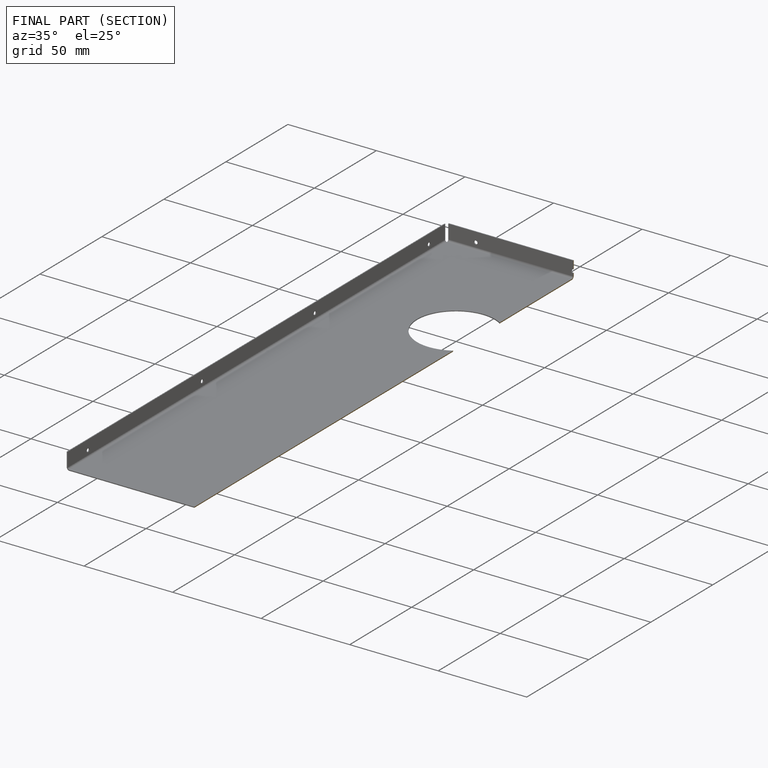
[diagram: finished part — half-section view (interior)]
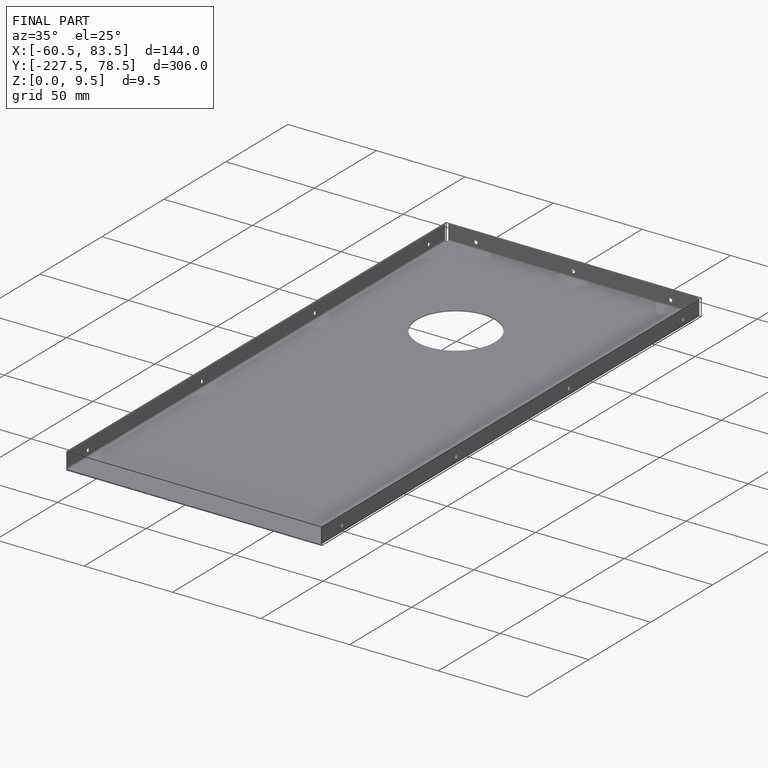
[diagram: finished part — iso view with bounding-box wireframe]
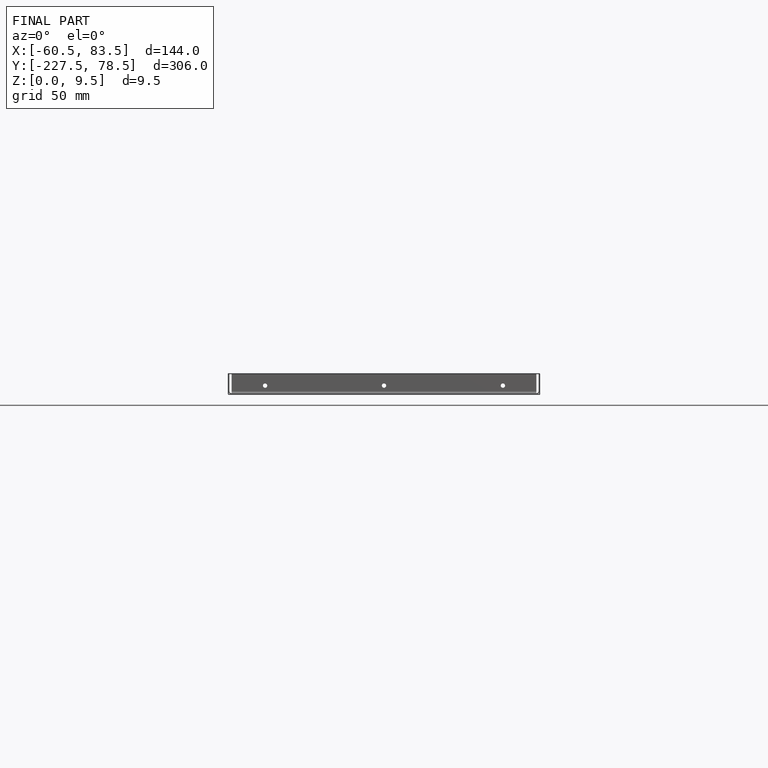
[diagram: finished part — front view with bounding-box wireframe]
